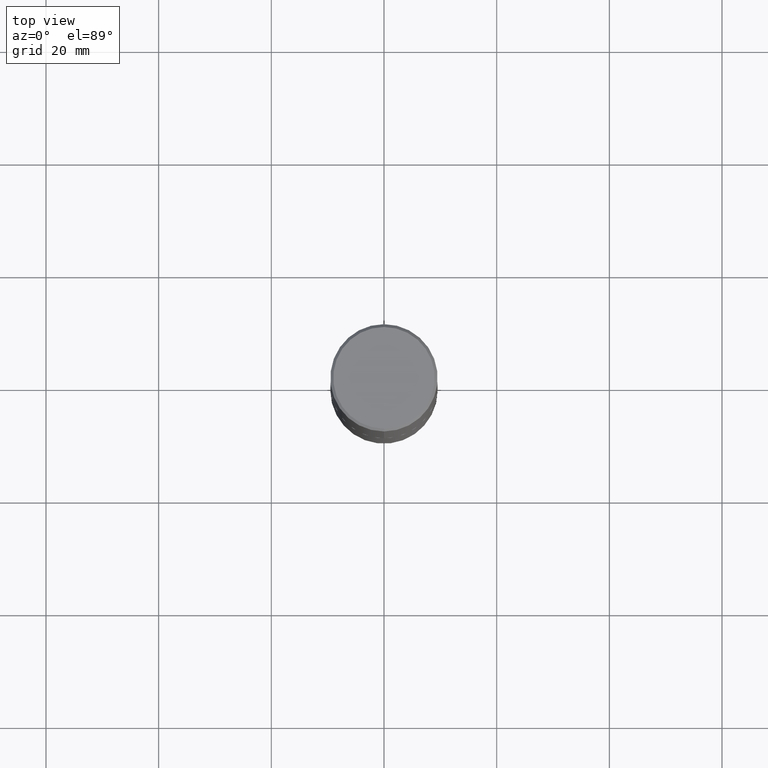
[diagram: clean part render]
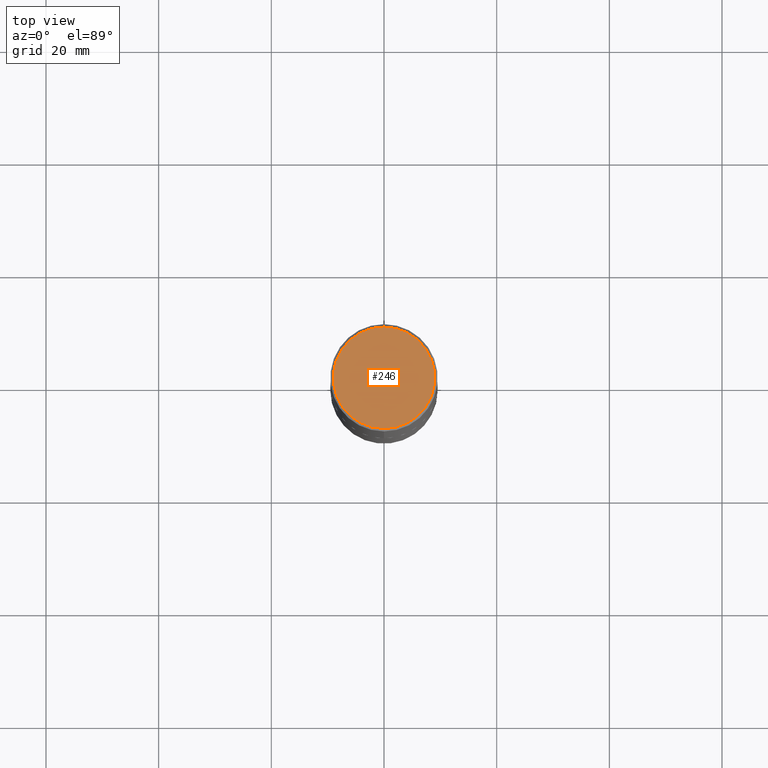
[diagram: same view with one face highlighted and labeled with its STEP entity id]
A machine part, top view. The second image highlights one B-rep face of the part: STEP entity #246.
In plain terms, the highlighted planar face has unit normal (0, -0, -1).
Its self-contained STEP definition (entity closure, byte-faithful):
#6 = AXIS2_PLACEMENT_3D ( 'NONE', #224, #56, #186 ) ;
#15 = CARTESIAN_POINT ( 'NONE',  ( -1.141397163745304909E-45, 1.628849886601155835E-31, 4.666305460853910467E-17 ) ) ;
#35 = AXIS2_PLACEMENT_3D ( 'NONE', #391, #397, #36 ) ;
#36 = DIRECTION ( 'NONE',  ( 6.982962677686265922E-15, 1.000000000000000000, -3.490662795793665557E-15 ) ) ;
#51 = CARTESIAN_POINT ( 'NONE',  ( 2.548781377355487113E-15, 0.3549999999999999822, -1.192522237898212341E-15 ) ) ;
#53 = VERTEX_POINT ( 'NONE', #51 ) ;
#56 = DIRECTION ( 'NONE',  ( -2.446040391741596606E-29, 3.490662795793665557E-15, 1.000000000000000000 ) ) ;
#100 = FACE_OUTER_BOUND ( 'NONE', #347, .T. ) ;
#123 = AXIS2_PLACEMENT_3D ( 'NONE', #15, #365, #334 ) ;
#131 = CIRCLE ( 'NONE', #123, 0.3549999999999999822 ) ;
#132 = CARTESIAN_POINT ( 'NONE',  ( -2.504081769186608216E-15, -0.3549999999999999822, 1.285848347115290366E-15 ) ) ;
#133 = EDGE_CURVE ( 'NONE', #318, #53, #354, .T. ) ;
#156 = ORIENTED_EDGE ( 'NONE', *, *, #345, .T. ) ;
#186 = DIRECTION ( 'NONE',  ( -6.982962677686265922E-15, -1.000000000000000000, 3.490662795793665557E-15 ) ) ;
#224 = CARTESIAN_POINT ( 'NONE',  ( -1.141397163745304909E-45, 1.628849886601155835E-31, 4.666305460853910467E-17 ) ) ;
#246 = ADVANCED_FACE ( 'NONE', ( #100 ), #330, .F. ) ;
#318 = VERTEX_POINT ( 'NONE', #132 ) ;
#330 = PLANE ( 'NONE',  #35 ) ;
#334 = DIRECTION ( 'NONE',  ( -6.982962677686265922E-15, -1.000000000000000000, 3.490662795793665557E-15 ) ) ;
#345 = EDGE_CURVE ( 'NONE', #53, #318, #131, .T. ) ;
#347 = EDGE_LOOP ( 'NONE', ( #156, #360 ) ) ;
#354 = CIRCLE ( 'NONE', #6, 0.3549999999999999822 ) ;
#360 = ORIENTED_EDGE ( 'NONE', *, *, #133, .T. ) ;
#365 = DIRECTION ( 'NONE',  ( -2.446040391741596606E-29, 3.490662795793665557E-15, 1.000000000000000000 ) ) ;
#391 = CARTESIAN_POINT ( 'NONE',  ( 2.478951750578624209E-15, 0.3549999999999999822, -1.215853765202481601E-15 ) ) ;
#397 = DIRECTION ( 'NONE',  ( 2.446040391741596045E-29, -3.490662795793665557E-15, -1.000000000000000000 ) ) ;